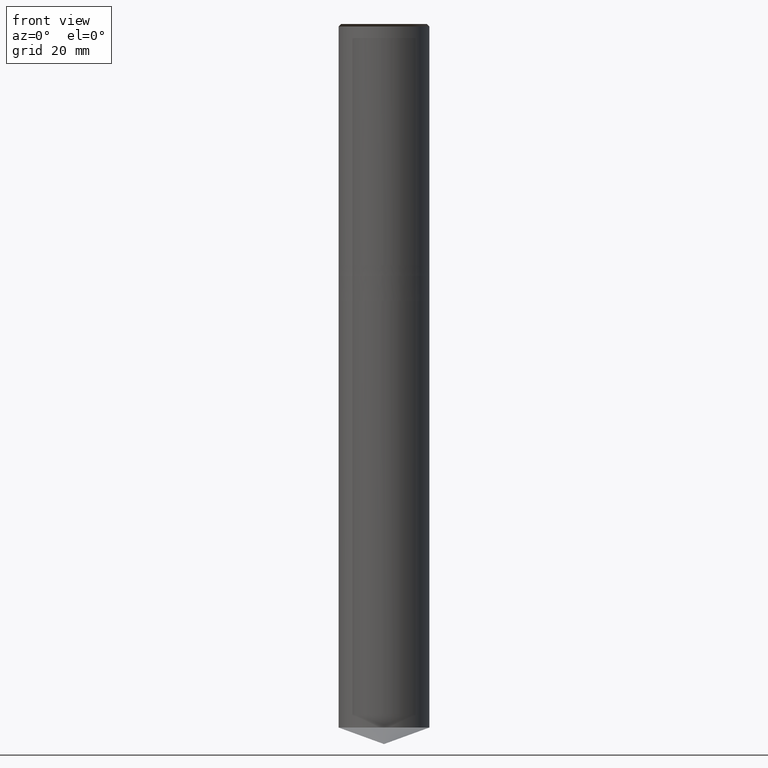
[diagram: clean part render]
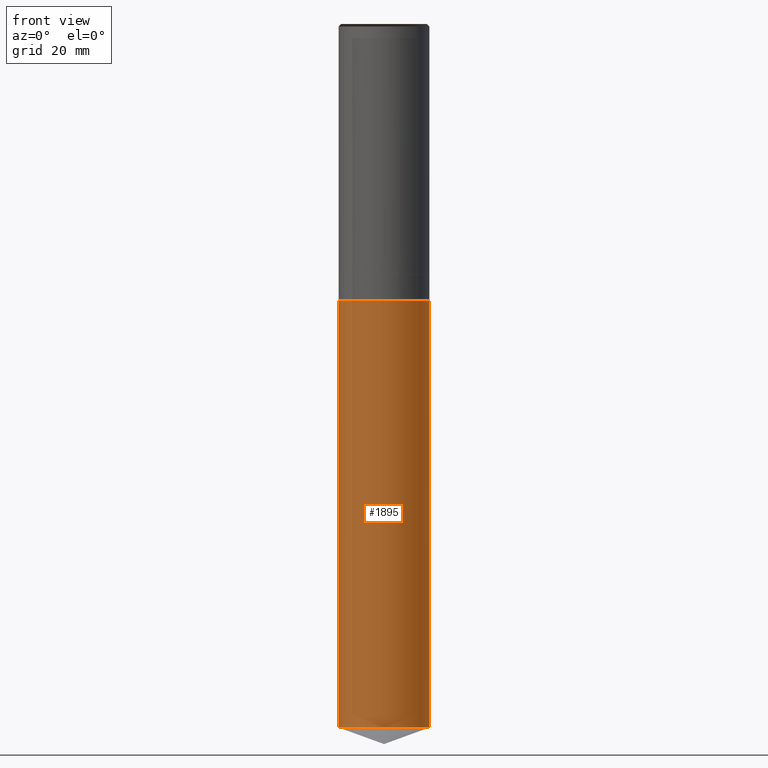
[diagram: same view with one face highlighted and labeled with its STEP entity id]
A machine part, front view. The second image highlights one B-rep face of the part: STEP entity #1895.
In plain terms, the highlighted face is a freeform B-spline surface patch.
Its self-contained STEP definition (entity closure, byte-faithful):
#1753=CARTESIAN_POINT('',(9.0,0.0,-91.724267891604));
#1757=CARTESIAN_POINT('',(-9.0,0.0,-91.724267891604));
#1758=CARTESIAN_POINT('',(9.0,0.0,-7.0));
#1762=CARTESIAN_POINT('',(-9.0,0.0,-7.0));
#1764=CARTESIAN_POINT('',(-9.0,-9.0,-91.724267891604));
#1765=CARTESIAN_POINT('',(0.0,-9.0,-91.724267891604));
#1766=CARTESIAN_POINT('',(9.0,-9.0,-91.724267891604));
#1767=CARTESIAN_POINT('',(-9.0,-9.0,-7.0));
#1768=CARTESIAN_POINT('',(0.0,-9.0,-7.0));
#1769=CARTESIAN_POINT('',(9.0,-9.0,-7.0));
#1876=(
BOUNDED_SURFACE()
B_SPLINE_SURFACE(1,2,(
(#1757,#1764,#1765,#1766,#1753),
(#1762,#1767,#1768,#1769,#1758)
), .UNSPECIFIED.,.F.,.F.,.F.)
B_SPLINE_SURFACE_WITH_KNOTS((2,2),(3,2,3),(
0.0,1.0),(
0.0,0.5,1.0), .UNSPECIFIED.)
GEOMETRIC_REPRESENTATION_ITEM()
RATIONAL_B_SPLINE_SURFACE(((1.0,0.707106781187,1.0,0.707106781187,1.0),
(1.0,0.707106781187,1.0,0.707106781187,1.0)
))
REPRESENTATION_ITEM('')
SURFACE()
);
#1877=(
BOUNDED_CURVE()
B_SPLINE_CURVE(2,(#1753,#1766,#1765,#1764,#1757),.UNSPECIFIED.,.F.,.F.)
B_SPLINE_CURVE_WITH_KNOTS((3,2,3),
(0.0,0.5,1.0),.UNSPECIFIED.)
CURVE()
GEOMETRIC_REPRESENTATION_ITEM()
RATIONAL_B_SPLINE_CURVE((1.0,0.707106781187,1.0,0.707106781187,1.0))
REPRESENTATION_ITEM('')
);
#1878=(
BOUNDED_CURVE()
B_SPLINE_CURVE(1,(#1757,#1762),.UNSPECIFIED.,.F.,.F.)
B_SPLINE_CURVE_WITH_KNOTS((2,2),
(0.0,1.0),.UNSPECIFIED.)
CURVE()
GEOMETRIC_REPRESENTATION_ITEM()
RATIONAL_B_SPLINE_CURVE((1.0,1.0))
REPRESENTATION_ITEM('')
);
#1879=(
BOUNDED_CURVE()
B_SPLINE_CURVE(2,(#1762,#1767,#1768,#1769,#1758),.UNSPECIFIED.,.F.,.F.)
B_SPLINE_CURVE_WITH_KNOTS((3,2,3),
(0.0,0.5,1.0),.UNSPECIFIED.)
CURVE()
GEOMETRIC_REPRESENTATION_ITEM()
RATIONAL_B_SPLINE_CURVE((1.0,0.707106781187,1.0,0.707106781187,1.0))
REPRESENTATION_ITEM('')
);
#1880=(
BOUNDED_CURVE()
B_SPLINE_CURVE(1,(#1758,#1753),.UNSPECIFIED.,.F.,.F.)
B_SPLINE_CURVE_WITH_KNOTS((2,2),
(0.0,1.0),.UNSPECIFIED.)
CURVE()
GEOMETRIC_REPRESENTATION_ITEM()
RATIONAL_B_SPLINE_CURVE((1.0,1.0))
REPRESENTATION_ITEM('')
);
#1881=VERTEX_POINT('',#1753);
#1882=VERTEX_POINT('',#1757);
#1883=VERTEX_POINT('',#1758);
#1884=VERTEX_POINT('',#1762);
#1885=EDGE_CURVE('',#1881,#1882,#1877,.T.);
#1886=EDGE_CURVE('',#1882,#1884,#1878,.T.);
#1887=EDGE_CURVE('',#1884,#1883,#1879,.T.);
#1888=EDGE_CURVE('',#1883,#1881,#1880,.T.);
#1889=ORIENTED_EDGE('',*,*,#1885,.T.);
#1890=ORIENTED_EDGE('',*,*,#1886,.T.);
#1891=ORIENTED_EDGE('',*,*,#1887,.T.);
#1892=ORIENTED_EDGE('',*,*,#1888,.T.);
#1893=EDGE_LOOP('',(#1889,#1890,#1891,#1892));
#1894=FACE_OUTER_BOUND('',#1893,.T.);
#1895=ADVANCED_FACE('',(#1894),#1876,.T.);